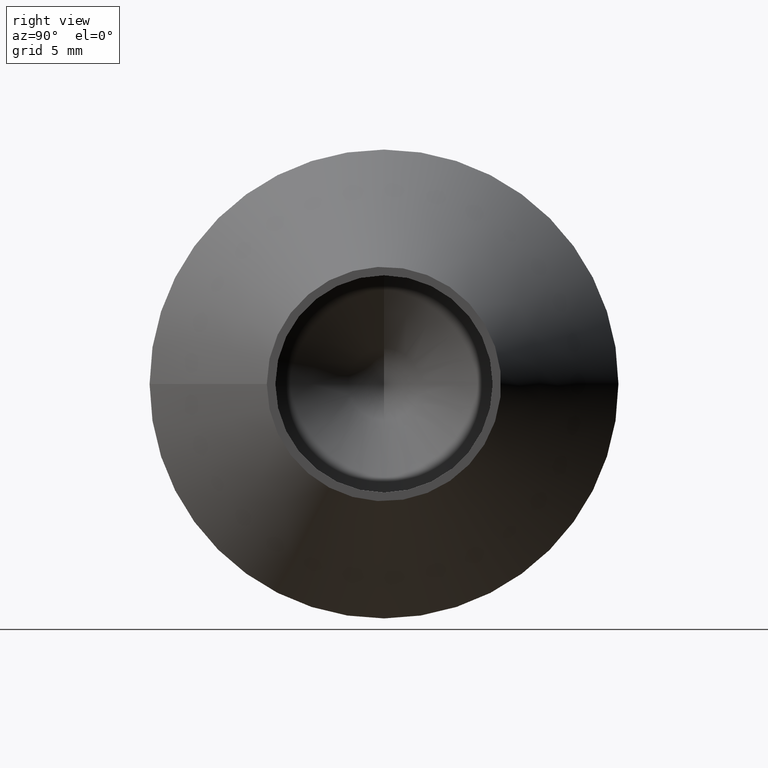
[diagram: clean part render]
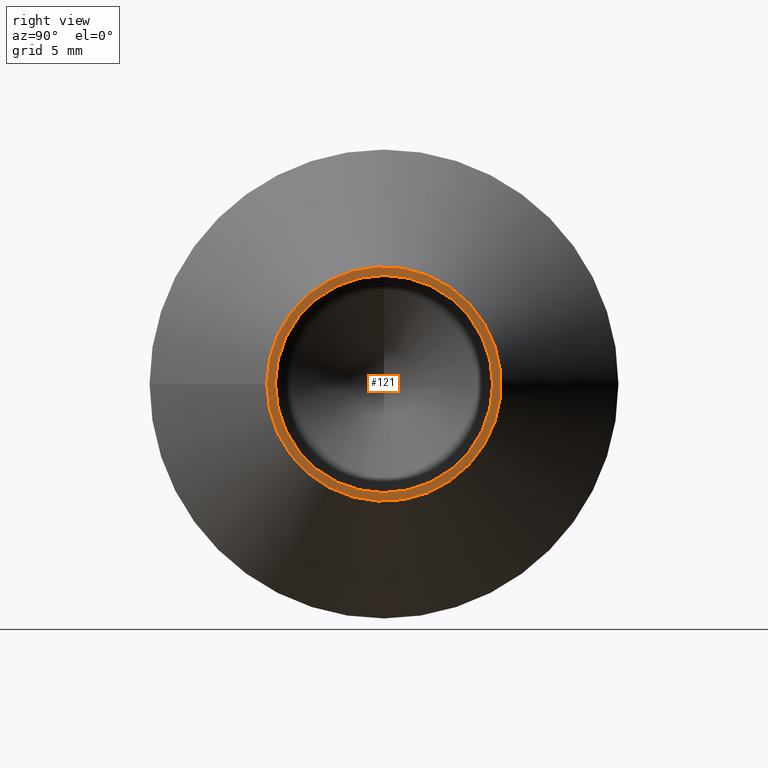
[diagram: same view with one face highlighted and labeled with its STEP entity id]
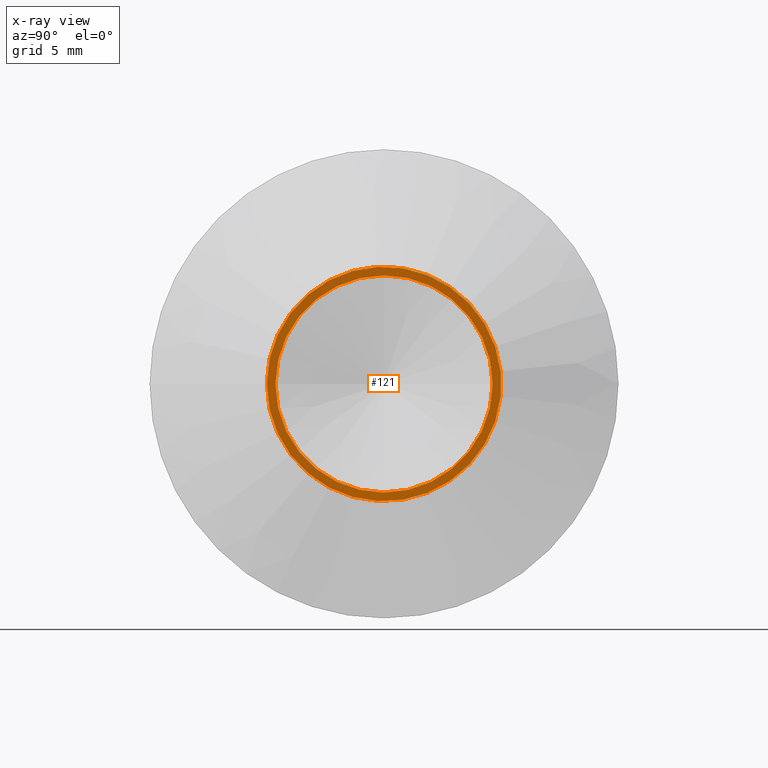
[diagram: x-ray of the same camera — body ghosted, the highlighted face saturated]
A machine part, right view. The second image highlights one B-rep face of the part: STEP entity #121.
The next image is the same camera in x-ray: the body ghosted, the highlighted face saturated — about 0% of this face is hidden behind the body in this view.
In plain terms, the highlighted planar face has unit normal (1, 0, 0).
Its self-contained STEP definition (entity closure, byte-faithful):
#17=FACE_BOUND('',#44,.T.);
#20=PLANE('',#161);
#32=FACE_OUTER_BOUND('',#43,.T.);
#43=EDGE_LOOP('',(#109));
#44=EDGE_LOOP('',(#110));
#57=CIRCLE('',#149,4.75);
#63=CIRCLE('',#160,5.125);
#66=VERTEX_POINT('',#211);
#72=VERTEX_POINT('',#231);
#75=EDGE_CURVE('',#66,#66,#57,.T.);
#84=EDGE_CURVE('',#72,#72,#63,.T.);
#109=ORIENTED_EDGE('',*,*,#84,.T.);
#110=ORIENTED_EDGE('',*,*,#75,.T.);
#121=ADVANCED_FACE('',(#32,#17),#20,.T.);
#149=AXIS2_PLACEMENT_3D('',#212,#172,#173);
#160=AXIS2_PLACEMENT_3D('',#232,#197,#198);
#161=AXIS2_PLACEMENT_3D('',#234,#200,#201);
#172=DIRECTION('center_axis',(-1.,0.,0.));
#173=DIRECTION('ref_axis',(0.,0.,-1.));
#197=DIRECTION('center_axis',(1.,0.,0.));
#198=DIRECTION('ref_axis',(0.,0.,-1.));
#200=DIRECTION('center_axis',(1.,0.,0.));
#201=DIRECTION('ref_axis',(0.,0.,-1.));
#211=CARTESIAN_POINT('',(13.5,-5.81707229594993E-16,4.75));
#212=CARTESIAN_POINT('Origin',(13.5,0.,0.));
#231=CARTESIAN_POINT('',(13.5,-5.125,-6.27631484563019E-16));
#232=CARTESIAN_POINT('Origin',(13.5,0.,0.));
#234=CARTESIAN_POINT('Origin',(13.5,0.,0.));